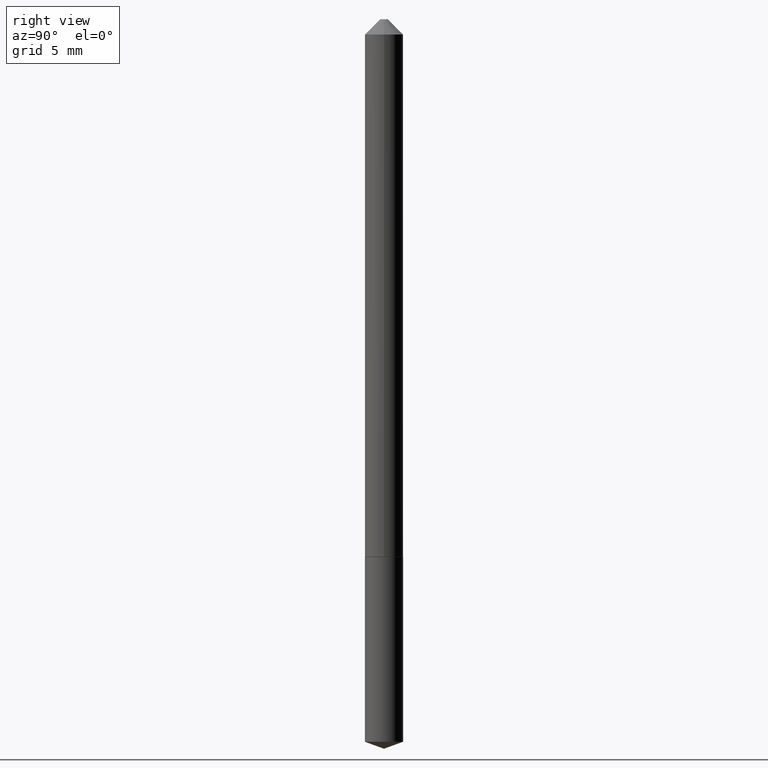
[diagram: clean part render]
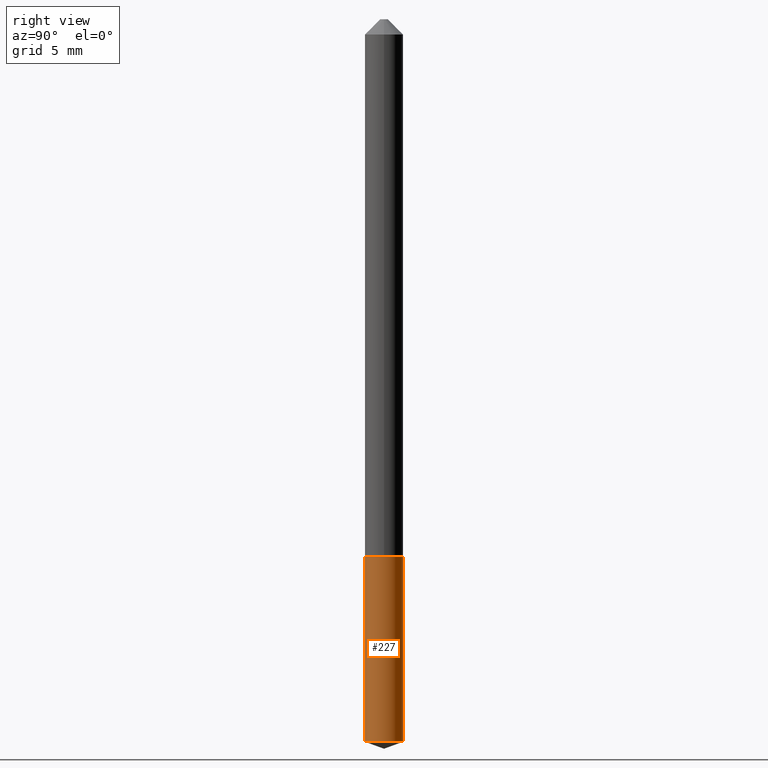
[diagram: same view with one face highlighted and labeled with its STEP entity id]
A machine part, right view. The second image highlights one B-rep face of the part: STEP entity #227.
In plain terms, the highlighted cylindrical surface (edge-blend (fillet) strip) has radius 0.9995 mm, axis along (-0, 0, 1).
Its self-contained STEP definition (entity closure, byte-faithful):
#14 = EDGE_CURVE ( 'NONE', #25, #93, #382, .T. ) ;
#16 = CYLINDRICAL_SURFACE ( 'NONE', #126, 0.03935000000000000303 ) ;
#25 = VERTEX_POINT ( 'NONE', #63 ) ;
#33 = DIRECTION ( 'NONE',  ( -2.444204879633820850E-29, 3.493291353602861629E-15, 1.000000000000000000 ) ) ;
#38 = EDGE_CURVE ( 'NONE', #347, #53, #366, .T. ) ;
#39 = CARTESIAN_POINT ( 'NONE',  ( 2.795985665216356337E-16, 0.03934999999999615194, -1.102400000000000047 ) ) ;
#45 = CARTESIAN_POINT ( 'NONE',  ( 2.695884811938494470E-29, -3.849009027940684107E-15, -1.102400000000000047 ) ) ;
#53 = VERTEX_POINT ( 'NONE', #192 ) ;
#56 = VECTOR ( 'NONE', #33, 39.37007874015748143 ) ;
#63 = CARTESIAN_POINT ( 'NONE',  ( -2.747795813669276519E-16, -0.03935000000000385412, -1.102399999999999824 ) ) ;
#70 = DIRECTION ( 'NONE',  ( -2.444204879633820850E-29, 3.493291353602861629E-15, 1.000000000000000000 ) ) ;
#93 = VERTEX_POINT ( 'NONE', #39 ) ;
#96 = EDGE_CURVE ( 'NONE', #53, #93, #281, .T. ) ;
#124 = CARTESIAN_POINT ( 'NONE',  ( 2.695884811938494470E-29, -3.849009027940684107E-15, -1.102400000000000047 ) ) ;
#125 = ORIENTED_EDGE ( 'NONE', *, *, #14, .F. ) ;
#126 = AXIS2_PLACEMENT_3D ( 'NONE', #45, #358, #259 ) ;
#129 = CARTESIAN_POINT ( 'NONE',  ( 3.623161811729646376E-29, -5.174286116107908423E-15, -1.481777771281625133 ) ) ;
#161 = DIRECTION ( 'NONE',  ( -2.444204879633820850E-29, 3.493291353602861629E-15, 1.000000000000000000 ) ) ;
#163 = LINE ( 'NONE', #256, #182 ) ;
#180 = EDGE_CURVE ( 'NONE', #347, #25, #163, .T. ) ;
#182 = VECTOR ( 'NONE', #161, 39.37007874015748143 ) ;
#190 = DIRECTION ( 'NONE',  ( -2.444204879633820850E-29, 3.493291353602861629E-15, 1.000000000000000000 ) ) ;
#192 = CARTESIAN_POINT ( 'NONE',  ( 2.795985665216355844E-16, 0.03934999999999482662, -1.481777771281625355 ) ) ;
#199 = FACE_OUTER_BOUND ( 'NONE', #360, .T. ) ;
#216 = AXIS2_PLACEMENT_3D ( 'NONE', #124, #190, #375 ) ;
#223 = CARTESIAN_POINT ( 'NONE',  ( 2.795985665216263153E-16, 0.03934999999999615194, -1.102400000000000047 ) ) ;
#227 = ADVANCED_FACE ( 'NONE', ( #199 ), #16, .T. ) ;
#244 = DIRECTION ( 'NONE',  ( -6.982962677686266711E-15, -1.000000000000000000, 6.942434545525446301E-15 ) ) ;
#251 = ORIENTED_EDGE ( 'NONE', *, *, #38, .T. ) ;
#256 = CARTESIAN_POINT ( 'NONE',  ( -2.747795813669276519E-16, -0.03935000000000385412, -1.102399999999999824 ) ) ;
#259 = DIRECTION ( 'NONE',  ( -6.982962677686266711E-15, -1.000000000000000000, 3.471217272762723151E-15 ) ) ;
#281 = LINE ( 'NONE', #223, #56 ) ;
#304 = ORIENTED_EDGE ( 'NONE', *, *, #96, .T. ) ;
#310 = AXIS2_PLACEMENT_3D ( 'NONE', #129, #70, #244 ) ;
#324 = ORIENTED_EDGE ( 'NONE', *, *, #180, .F. ) ;
#335 = CARTESIAN_POINT ( 'NONE',  ( -2.747795813669183828E-16, -0.03935000000000517251, -1.481777771281625133 ) ) ;
#347 = VERTEX_POINT ( 'NONE', #335 ) ;
#358 = DIRECTION ( 'NONE',  ( -2.444204879633820850E-29, 3.493291353602861629E-15, 1.000000000000000000 ) ) ;
#360 = EDGE_LOOP ( 'NONE', ( #251, #304, #125, #324 ) ) ;
#366 = CIRCLE ( 'NONE', #310, 0.03935000000000000303 ) ;
#375 = DIRECTION ( 'NONE',  ( -6.982962677686266711E-15, -1.000000000000000000, 3.471217272762723151E-15 ) ) ;
#382 = CIRCLE ( 'NONE', #216, 0.03935000000000000303 ) ;